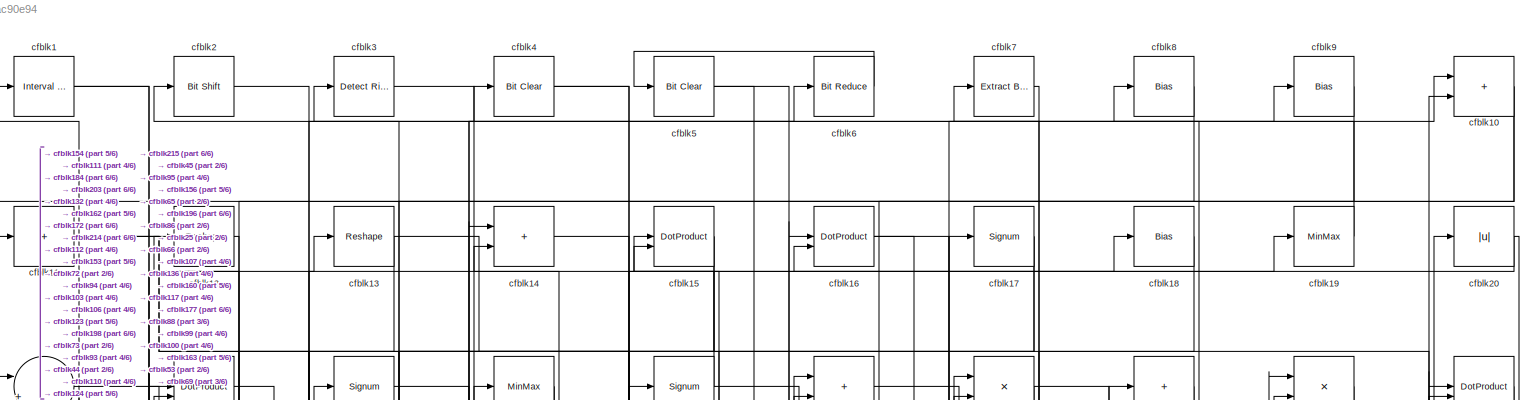
[diagram: root canvas - part 1/6, full width, top band]
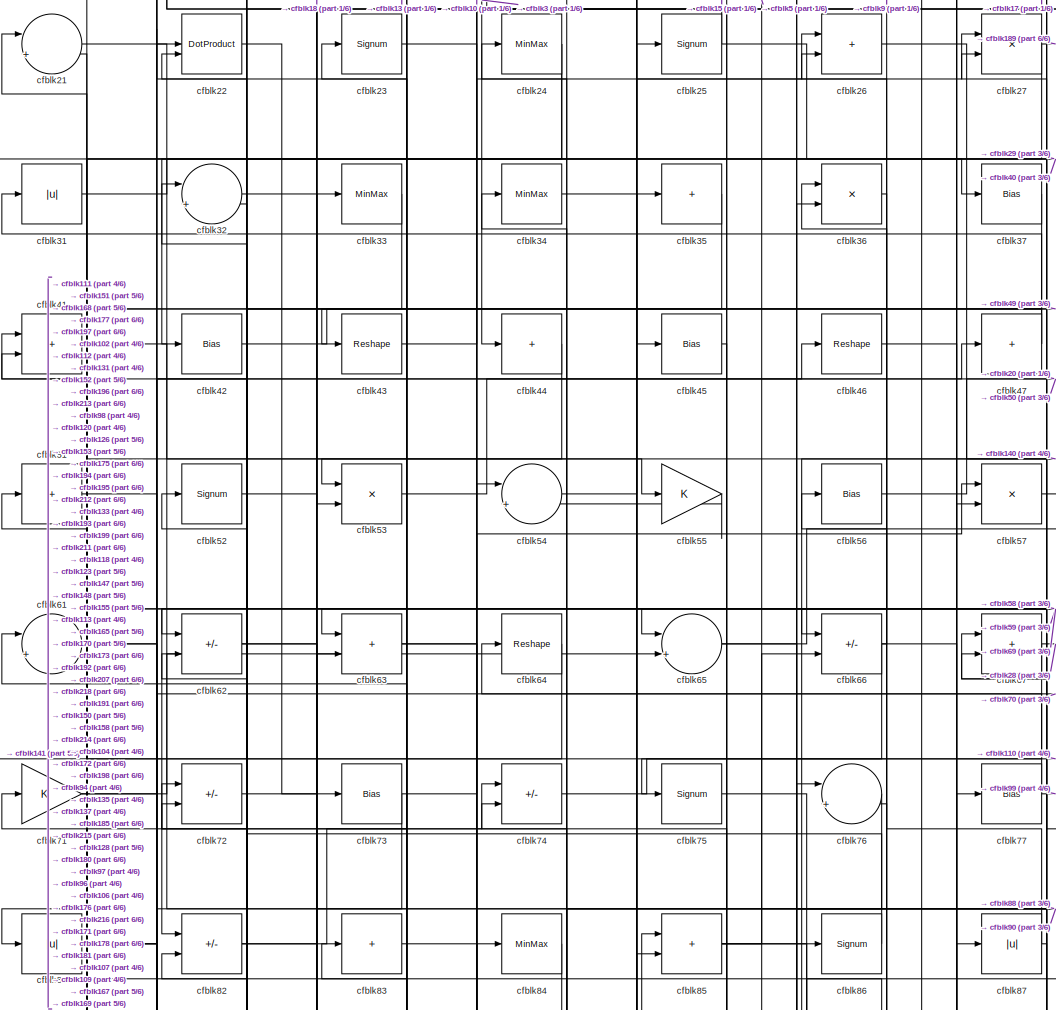
[diagram: root canvas - part 2/6, top center region]
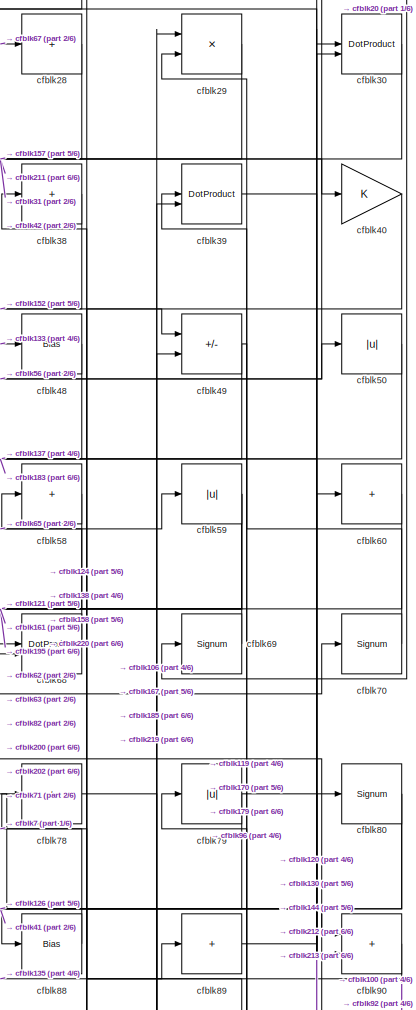
[diagram: root canvas - part 3/6, top right region]
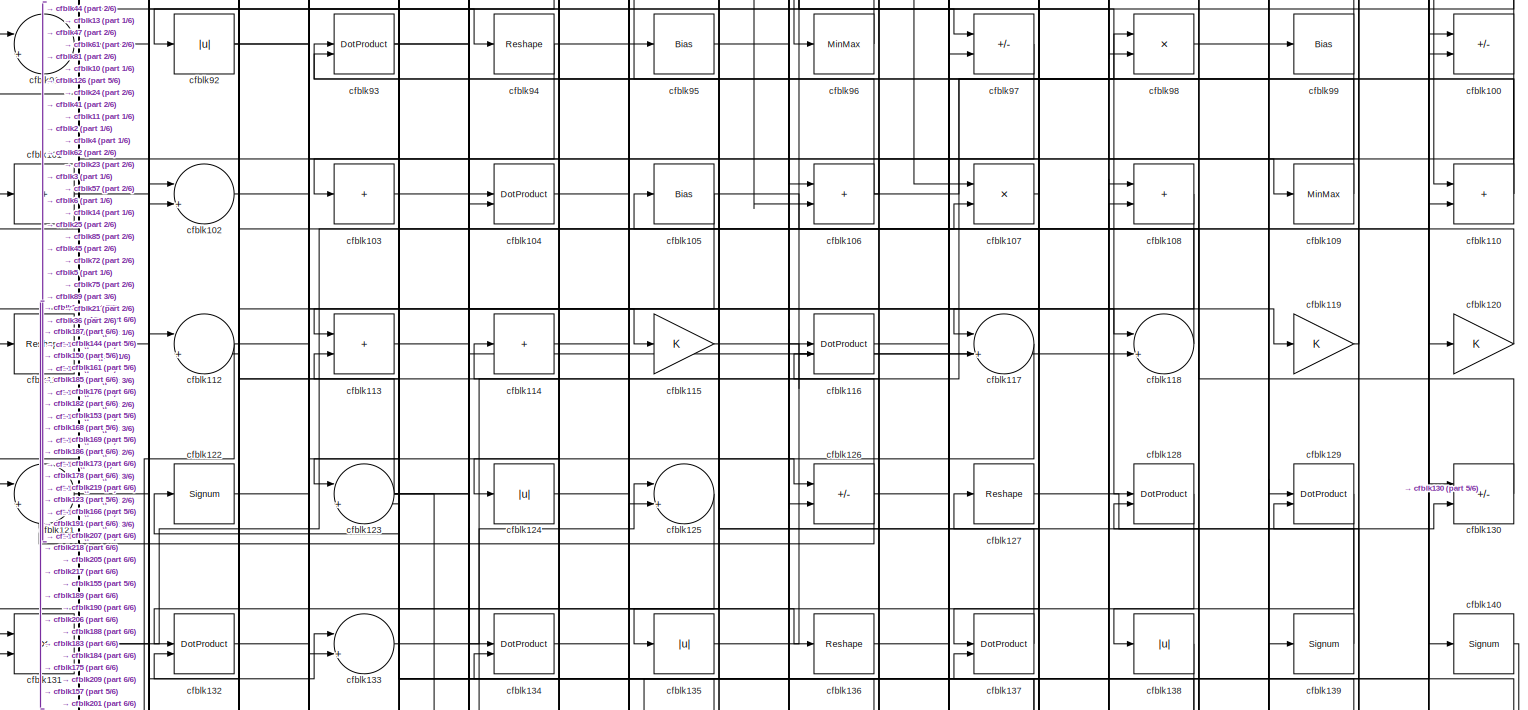
[diagram: root canvas - part 4/6, full width, middle band]
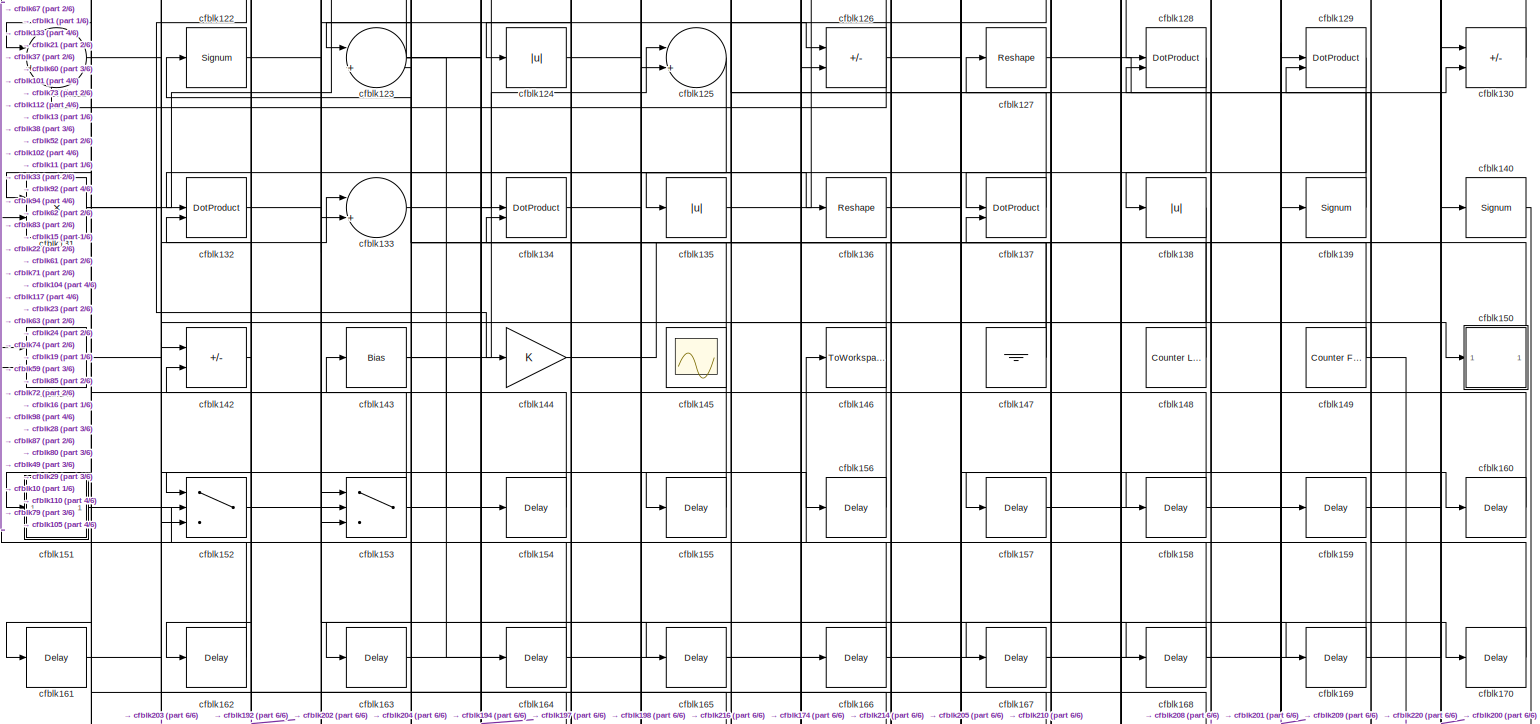
[diagram: root canvas - part 5/6, full width, middle band]
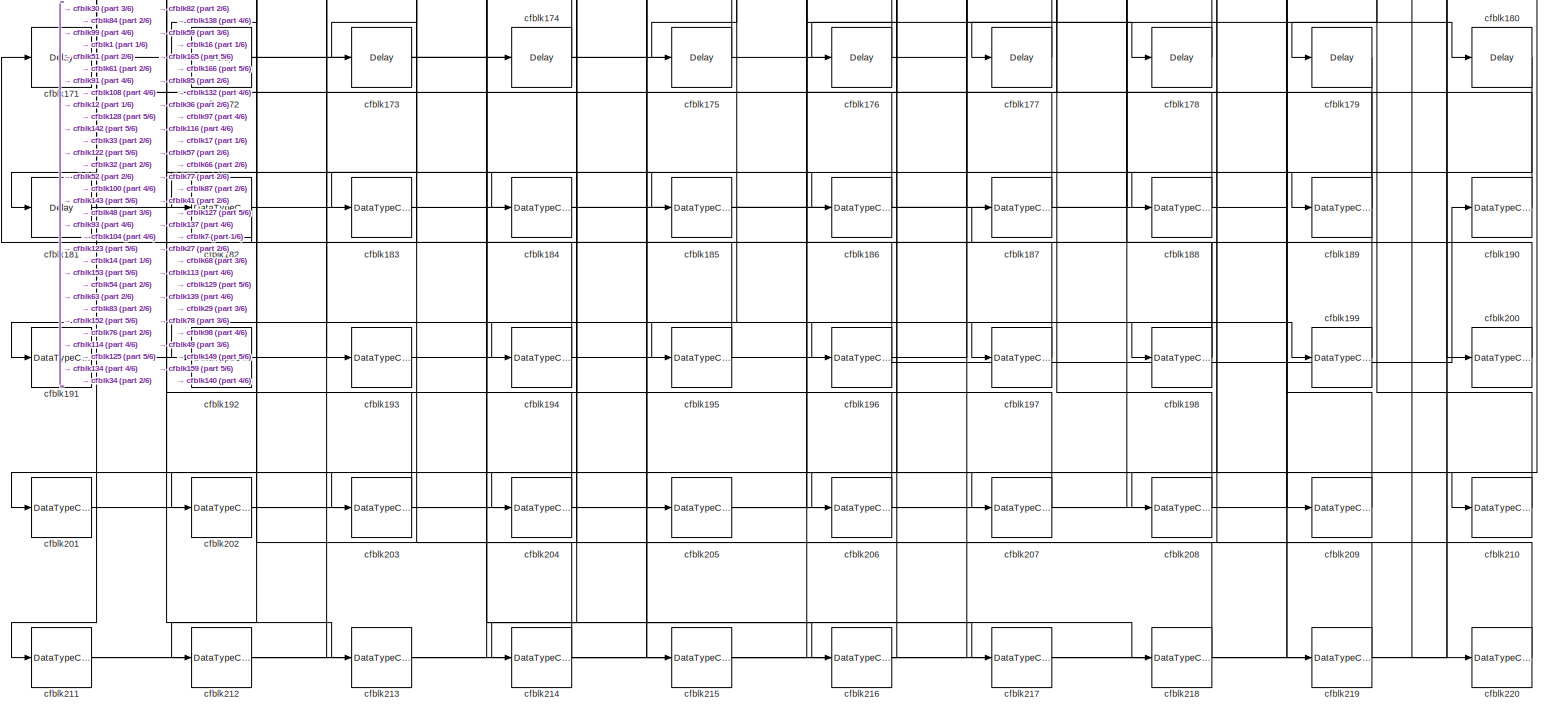
[diagram: root canvas - part 6/6, full width, bottom band]
MODEL slx_59b73ac90e94
KIND model
CONFIG AbsTol = auto
CONFIG EnableMultiTasking = off
CONFIG FixedStep = auto
CONFIG MaxStep = auto
CONFIG MinStep = auto
CONFIG RelTol = 1e-3
CONFIG SampleTimeConstraint = Unconstrained
CONFIG SolverName = VariableStepAuto
CONFIG StartTime = 0.0
CONFIG StopTime = 10.0
BLOCK [Reference] cfblk1  REF=hdlsllib/Logic and Bit
Operations/Interval Test
  SourceBlock = hdlsllib/Logic and Bit\nOperations/Interval Test
  SourceType = Interval Test
BLOCK [Sum] cfblk10
  IconShape = rectangular
BLOCK [Sum] cfblk100
  IconShape = rectangular
  Inputs = +-
BLOCK [Sum] cfblk101
  IconShape = rectangular
  Inputs = +
BLOCK [Sum] cfblk102
  Inputs = |++
BLOCK [Sum] cfblk103
  IconShape = rectangular
  Inputs = +
BLOCK [DotProduct] cfblk104
  OutDataTypeStr = Inherit: Inherit via internal rule
BLOCK [Bias] cfblk105
  Bias = 0.0
  SaturateOnIntegerOverflow = off
BLOCK [Sum] cfblk106
  IconShape = rectangular
BLOCK [Product] cfblk107
  Inputs = */
  RndMeth = Zero
  SaturateOnIntegerOverflow = on
BLOCK [Sum] cfblk108
  IconShape = rectangular
BLOCK [MinMax] cfblk109
BLOCK [Sum] cfblk11
  IconShape = rectangular
  Inputs = +
BLOCK [Sum] cfblk110
  IconShape = rectangular
BLOCK [Reshape] cfblk111
BLOCK [Sum] cfblk112
  Inputs = |++
BLOCK [Sum] cfblk113
  IconShape = rectangular
BLOCK [Sum] cfblk114
  IconShape = rectangular
  Inputs = +
BLOCK [Gain] cfblk115
BLOCK [DotProduct] cfblk116
  OutDataTypeStr = Inherit: Inherit via internal rule
BLOCK [Sum] cfblk117
  Inputs = |++
BLOCK [Sum] cfblk118
  Inputs = |++
BLOCK [Gain] cfblk119
BLOCK [Reshape] cfblk12
BLOCK [Gain] cfblk120
BLOCK [Sum] cfblk121
  Inputs = |++
BLOCK [Signum] cfblk122
BLOCK [Sum] cfblk123
  Inputs = |++
BLOCK [Abs] cfblk124
  SaturateOnIntegerOverflow = off
BLOCK [Sum] cfblk125
  Inputs = |++
BLOCK [Sum] cfblk126
  IconShape = rectangular
  Inputs = +-
BLOCK [Reshape] cfblk127
BLOCK [DotProduct] cfblk128
  OutDataTypeStr = Inherit: Inherit via internal rule
BLOCK [DotProduct] cfblk129
  OutDataTypeStr = Inherit: Inherit via internal rule
BLOCK [Reshape] cfblk13
BLOCK [Sum] cfblk130
  IconShape = rectangular
  Inputs = +-
BLOCK [Product] cfblk131
  Inputs = */
  RndMeth = Zero
  SaturateOnIntegerOverflow = on
BLOCK [DotProduct] cfblk132
  OutDataTypeStr = Inherit: Inherit via internal rule
BLOCK [Sum] cfblk133
  Inputs = |++
BLOCK [DotProduct] cfblk134
  OutDataTypeStr = Inherit: Inherit via internal rule
BLOCK [Abs] cfblk135
  SaturateOnIntegerOverflow = off
BLOCK [Reshape] cfblk136
BLOCK [DotProduct] cfblk137
  OutDataTypeStr = Inherit: Inherit via internal rule
BLOCK [Abs] cfblk138
  SaturateOnIntegerOverflow = off
BLOCK [Signum] cfblk139
BLOCK [Sum] cfblk14
  IconShape = rectangular
BLOCK [Signum] cfblk140
BLOCK [Sum] cfblk141
  IconShape = rectangular
BLOCK [Sum] cfblk142
  IconShape = rectangular
  Inputs = +-
BLOCK [Bias] cfblk143
  Bias = 0.0
  SaturateOnIntegerOverflow = off
BLOCK [Gain] cfblk144
BLOCK [Scope] cfblk145
  Floating = on
  NumInputPorts = 1
  ScopeSpecificationString = Simulink.scopes.TimeScopeBlockCfg('CurrentConfiguration', extmgr.ConfigurationSet(extmgr.Configuration('Core','General UI',true,'FigureColor',[0.156862745098039 0.156862745098039 0.156862745098039]),extmgr.Configuration('Core','Source UI',true),extmgr.Configuration('Sources','WiredSimulink',true,'DataLoggingVariableName','ScopeData1','DataLoggingSaveFormat','StructureWithTime','DataLoggingLimitDat...<+2713ch>
BLOCK [ToWorkspace] cfblk146
  MaxDataPoints = inf
  SampleTime = -1
  SaveFormat = Timeseries
  VariableName = simout
BLOCK [Ground] cfblk147
BLOCK [Reference] cfblk148  REF=hdlsllib/Sources/Counter
Limited
  SourceBlock = hdlsllib/Sources/Counter\nLimited
  SourceType = Counter Limited
BLOCK [Reference] cfblk149  REF=hdlsllib/Sources/Counter
Free-Running
  SourceBlock = hdlsllib/Sources/Counter\nFree-Running
  SourceType = Counter Free-Running
BLOCK [DotProduct] cfblk15
  OutDataTypeStr = Inherit: Inherit via internal rule
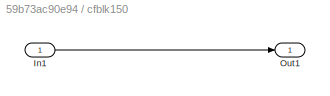
BLOCK [SubSystem] cfblk150
  LibrarySourceBlock = hdlsllib/Ports &\nSubsystems/Subsystem
BLOCK [Inport] cfblk150/In1
BLOCK [Outport] cfblk150/Out1
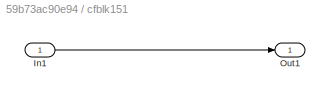
BLOCK [SubSystem] cfblk151
  LibrarySourceBlock = hdlsllib/Ports &\nSubsystems/Subsystem
BLOCK [Inport] cfblk151/In1
BLOCK [Outport] cfblk151/Out1
BLOCK [Switch] cfblk152
  InputSameDT = off
  SaturateOnIntegerOverflow = off
BLOCK [Switch] cfblk153
  InputSameDT = off
  SaturateOnIntegerOverflow = off
BLOCK [Delay] cfblk154
  InputPortMap = u0
  SampleTime = 1
BLOCK [Delay] cfblk155
  InputPortMap = u0
  SampleTime = 1
BLOCK [Delay] cfblk156
  InputPortMap = u0
  SampleTime = 1
BLOCK [Delay] cfblk157
  InputPortMap = u0
  SampleTime = 1
BLOCK [Delay] cfblk158
  InputPortMap = u0
  SampleTime = 1
BLOCK [Delay] cfblk159
  InputPortMap = u0
  SampleTime = 1
BLOCK [DotProduct] cfblk16
  OutDataTypeStr = Inherit: Inherit via internal rule
BLOCK [Delay] cfblk160
  InputPortMap = u0
  SampleTime = 1
BLOCK [Delay] cfblk161
  InputPortMap = u0
  SampleTime = 1
BLOCK [Delay] cfblk162
  InputPortMap = u0
  SampleTime = 1
BLOCK [Delay] cfblk163
  InputPortMap = u0
  SampleTime = 1
BLOCK [Delay] cfblk164
  InputPortMap = u0
  SampleTime = 1
BLOCK [Delay] cfblk165
  InputPortMap = u0
  SampleTime = 1
BLOCK [Delay] cfblk166
  InputPortMap = u0
  SampleTime = 1
BLOCK [Delay] cfblk167
  InputPortMap = u0
  SampleTime = 1
BLOCK [Delay] cfblk168
  InputPortMap = u0
  SampleTime = 1
BLOCK [Delay] cfblk169
  InputPortMap = u0
  SampleTime = 1
BLOCK [Signum] cfblk17
BLOCK [Delay] cfblk170
  InputPortMap = u0
  SampleTime = 1
BLOCK [Delay] cfblk171
  InputPortMap = u0
  SampleTime = 1
BLOCK [Delay] cfblk172
  InputPortMap = u0
  SampleTime = 1
BLOCK [Delay] cfblk173
  InputPortMap = u0
  SampleTime = 1
BLOCK [Delay] cfblk174
  InputPortMap = u0
  SampleTime = 1
BLOCK [Delay] cfblk175
  InputPortMap = u0
  SampleTime = 1
BLOCK [Delay] cfblk176
  InputPortMap = u0
  SampleTime = 1
BLOCK [Delay] cfblk177
  InputPortMap = u0
  SampleTime = 1
BLOCK [Delay] cfblk178
  InputPortMap = u0
  SampleTime = 1
BLOCK [Delay] cfblk179
  InputPortMap = u0
  SampleTime = 1
BLOCK [Bias] cfblk18
  Bias = 0.0
  SaturateOnIntegerOverflow = off
BLOCK [Delay] cfblk180
  InputPortMap = u0
  SampleTime = 1
BLOCK [Delay] cfblk181
  InputPortMap = u0
  SampleTime = 1
BLOCK [DataTypeConversion] cfblk182
  OutDataTypeStr = uint8
  RndMeth = Floor
  SaturateOnIntegerOverflow = off
BLOCK [DataTypeConversion] cfblk183
  OutDataTypeStr = uint8
  RndMeth = Floor
  SaturateOnIntegerOverflow = off
BLOCK [DataTypeConversion] cfblk184
  OutDataTypeStr = uint8
  RndMeth = Floor
  SaturateOnIntegerOverflow = off
BLOCK [DataTypeConversion] cfblk185
  RndMeth = Floor
  SaturateOnIntegerOverflow = off
BLOCK [DataTypeConversion] cfblk186
  OutDataTypeStr = uint8
  RndMeth = Floor
  SaturateOnIntegerOverflow = off
BLOCK [DataTypeConversion] cfblk187
  OutDataTypeStr = uint8
  RndMeth = Floor
  SaturateOnIntegerOverflow = off
BLOCK [DataTypeConversion] cfblk188
  OutDataTypeStr = uint8
  RndMeth = Floor
  SaturateOnIntegerOverflow = off
BLOCK [DataTypeConversion] cfblk189
  OutDataTypeStr = uint8
  RndMeth = Floor
  SaturateOnIntegerOverflow = off
BLOCK [MinMax] cfblk19
BLOCK [DataTypeConversion] cfblk190
  OutDataTypeStr = uint8
  RndMeth = Floor
  SaturateOnIntegerOverflow = off
BLOCK [DataTypeConversion] cfblk191
  OutDataTypeStr = uint8
  RndMeth = Floor
  SaturateOnIntegerOverflow = off
BLOCK [DataTypeConversion] cfblk192
  OutDataTypeStr = uint8
  RndMeth = Floor
  SaturateOnIntegerOverflow = off
BLOCK [DataTypeConversion] cfblk193
  OutDataTypeStr = uint8
  RndMeth = Floor
  SaturateOnIntegerOverflow = off
BLOCK [DataTypeConversion] cfblk194
  OutDataTypeStr = uint8
  RndMeth = Floor
  SaturateOnIntegerOverflow = off
BLOCK [DataTypeConversion] cfblk195
  OutDataTypeStr = uint8
  RndMeth = Floor
  SaturateOnIntegerOverflow = off
BLOCK [DataTypeConversion] cfblk196
  RndMeth = Floor
  SaturateOnIntegerOverflow = off
BLOCK [DataTypeConversion] cfblk197
  OutDataTypeStr = uint8
  RndMeth = Floor
  SaturateOnIntegerOverflow = off
BLOCK [DataTypeConversion] cfblk198
  RndMeth = Floor
  SaturateOnIntegerOverflow = off
BLOCK [DataTypeConversion] cfblk199
  OutDataTypeStr = uint8
  RndMeth = Floor
  SaturateOnIntegerOverflow = off
BLOCK [Reference] cfblk2  REF=hdlsllib/Logic and Bit
Operations/Bit Shift
  SourceBlock = hdlsllib/Logic and Bit\nOperations/Bit Shift
  SourceType = Bit Shift
BLOCK [Abs] cfblk20
  SaturateOnIntegerOverflow = off
BLOCK [DataTypeConversion] cfblk200
  OutDataTypeStr = uint8
  RndMeth = Floor
  SaturateOnIntegerOverflow = off
BLOCK [DataTypeConversion] cfblk201
  OutDataTypeStr = uint8
  RndMeth = Floor
  SaturateOnIntegerOverflow = off
BLOCK [DataTypeConversion] cfblk202
  OutDataTypeStr = uint8
  RndMeth = Floor
  SaturateOnIntegerOverflow = off
BLOCK [DataTypeConversion] cfblk203
  OutDataTypeStr = uint8
  RndMeth = Floor
  SaturateOnIntegerOverflow = off
BLOCK [DataTypeConversion] cfblk204
  OutDataTypeStr = uint8
  RndMeth = Floor
  SaturateOnIntegerOverflow = off
BLOCK [DataTypeConversion] cfblk205
  OutDataTypeStr = uint8
  RndMeth = Floor
  SaturateOnIntegerOverflow = off
BLOCK [DataTypeConversion] cfblk206
  OutDataTypeStr = uint8
  RndMeth = Floor
  SaturateOnIntegerOverflow = off
BLOCK [DataTypeConversion] cfblk207
  OutDataTypeStr = uint8
  RndMeth = Floor
  SaturateOnIntegerOverflow = off
BLOCK [DataTypeConversion] cfblk208
  OutDataTypeStr = uint8
  RndMeth = Floor
  SaturateOnIntegerOverflow = off
BLOCK [DataTypeConversion] cfblk209
  OutDataTypeStr = uint8
  RndMeth = Floor
  SaturateOnIntegerOverflow = off
BLOCK [Sum] cfblk21
  Inputs = |++
BLOCK [DataTypeConversion] cfblk210
  OutDataTypeStr = uint8
  RndMeth = Floor
  SaturateOnIntegerOverflow = off
BLOCK [DataTypeConversion] cfblk211
  RndMeth = Floor
  SaturateOnIntegerOverflow = off
BLOCK [DataTypeConversion] cfblk212
  OutDataTypeStr = uint8
  RndMeth = Floor
  SaturateOnIntegerOverflow = off
BLOCK [DataTypeConversion] cfblk213
  OutDataTypeStr = uint8
  RndMeth = Floor
  SaturateOnIntegerOverflow = off
BLOCK [DataTypeConversion] cfblk214
  RndMeth = Floor
  SaturateOnIntegerOverflow = off
BLOCK [DataTypeConversion] cfblk215
  OutDataTypeStr = uint8
  RndMeth = Floor
  SaturateOnIntegerOverflow = off
BLOCK [DataTypeConversion] cfblk216
  OutDataTypeStr = uint8
  RndMeth = Floor
  SaturateOnIntegerOverflow = off
BLOCK [DataTypeConversion] cfblk217
  OutDataTypeStr = uint8
  RndMeth = Floor
  SaturateOnIntegerOverflow = off
BLOCK [DataTypeConversion] cfblk218
  OutDataTypeStr = uint8
  RndMeth = Floor
  SaturateOnIntegerOverflow = off
BLOCK [DataTypeConversion] cfblk219
  OutDataTypeStr = uint8
  RndMeth = Floor
  SaturateOnIntegerOverflow = off
BLOCK [DotProduct] cfblk22
  OutDataTypeStr = Inherit: Inherit via internal rule
BLOCK [DataTypeConversion] cfblk220
  OutDataTypeStr = uint8
  RndMeth = Floor
  SaturateOnIntegerOverflow = off
BLOCK [Signum] cfblk23
BLOCK [MinMax] cfblk24
BLOCK [Signum] cfblk25
BLOCK [Sum] cfblk26
  IconShape = rectangular
BLOCK [Product] cfblk27
  Inputs = */
  RndMeth = Zero
  SaturateOnIntegerOverflow = on
BLOCK [Sum] cfblk28
  IconShape = rectangular
  Inputs = +
BLOCK [Product] cfblk29
  Inputs = */
  RndMeth = Zero
  SaturateOnIntegerOverflow = on
BLOCK [Reference] cfblk3  REF=hdlsllib/Logic and Bit
Operations/Detect Rise
Positive
  SourceBlock = hdlsllib/Logic and Bit\nOperations/Detect Rise\nPositive
  SourceType = Detect Rise Positive
BLOCK [DotProduct] cfblk30
  OutDataTypeStr = Inherit: Inherit via internal rule
BLOCK [Abs] cfblk31
  SaturateOnIntegerOverflow = off
BLOCK [Sum] cfblk32
  Inputs = |++
BLOCK [MinMax] cfblk33
BLOCK [MinMax] cfblk34
BLOCK [Sum] cfblk35
  IconShape = rectangular
  Inputs = +
BLOCK [Product] cfblk36
  Inputs = */
  RndMeth = Zero
  SaturateOnIntegerOverflow = on
BLOCK [Bias] cfblk37
  Bias = 0.0
  SaturateOnIntegerOverflow = off
BLOCK [Sum] cfblk38
  IconShape = rectangular
  Inputs = +
BLOCK [DotProduct] cfblk39
  OutDataTypeStr = Inherit: Inherit via internal rule
BLOCK [Reference] cfblk4  REF=simulink/Logic and Bit
Operations/Bit Clear
  LibrarySourceBlock = hdlsllib/Logic and Bit\nOperations/Bit Clear
  SourceBlock = simulink/Logic and Bit\nOperations/Bit Clear
  SourceType = Bit Clear
BLOCK [Gain] cfblk40
BLOCK [Sum] cfblk41
  IconShape = rectangular
BLOCK [Bias] cfblk42
  Bias = 0.0
  SaturateOnIntegerOverflow = off
BLOCK [Reshape] cfblk43
BLOCK [Sum] cfblk44
  IconShape = rectangular
  Inputs = +
BLOCK [Bias] cfblk45
  Bias = 0.0
  SaturateOnIntegerOverflow = off
BLOCK [Reshape] cfblk46
BLOCK [Sum] cfblk47
  IconShape = rectangular
  Inputs = +
BLOCK [Bias] cfblk48
  Bias = 0.0
  SaturateOnIntegerOverflow = off
BLOCK [Sum] cfblk49
  IconShape = rectangular
  Inputs = +-
BLOCK [Reference] cfblk5  REF=simulink/Logic and Bit
Operations/Bit Clear
  LibrarySourceBlock = hdlsllib/Logic and Bit\nOperations/Bit Clear
  SourceBlock = simulink/Logic and Bit\nOperations/Bit Clear
  SourceType = Bit Clear
BLOCK [Abs] cfblk50
  SaturateOnIntegerOverflow = off
BLOCK [Sum] cfblk51
  IconShape = rectangular
  Inputs = +
BLOCK [Signum] cfblk52
BLOCK [Product] cfblk53
  Inputs = */
  RndMeth = Zero
  SaturateOnIntegerOverflow = on
BLOCK [Sum] cfblk54
  Inputs = |++
BLOCK [Gain] cfblk55
BLOCK [Bias] cfblk56
  Bias = 0.0
  SaturateOnIntegerOverflow = off
BLOCK [Product] cfblk57
  Inputs = */
  RndMeth = Zero
  SaturateOnIntegerOverflow = on
BLOCK [Sum] cfblk58
  IconShape = rectangular
  Inputs = +
BLOCK [Abs] cfblk59
  SaturateOnIntegerOverflow = off
BLOCK [Reference] cfblk6  REF=hdlsllib/Logic and Bit
Operations/Bit Reduce
  SourceBlock = hdlsllib/Logic and Bit\nOperations/Bit Reduce
  SourceType = Bit Reduce
BLOCK [Sum] cfblk60
  IconShape = rectangular
  Inputs = +
BLOCK [Sum] cfblk61
  Inputs = |++
BLOCK [Sum] cfblk62
  IconShape = rectangular
  Inputs = +-
BLOCK [Sum] cfblk63
  IconShape = rectangular
BLOCK [Reshape] cfblk64
BLOCK [Sum] cfblk65
  Inputs = |++
BLOCK [Sum] cfblk66
  IconShape = rectangular
  Inputs = +-
BLOCK [Sum] cfblk67
  IconShape = rectangular
BLOCK [DotProduct] cfblk68
  OutDataTypeStr = Inherit: Inherit via internal rule
BLOCK [Signum] cfblk69
BLOCK [Reference] cfblk7  REF=simulink/Logic and Bit
Operations/Extract Bits
  LibrarySourceBlock = hdlsllib/Logic and Bit\nOperations/Extract Bits
  SourceBlock = simulink/Logic and Bit\nOperations/Extract Bits
  SourceType = Extract Bits
BLOCK [Signum] cfblk70
BLOCK [Gain] cfblk71
BLOCK [Sum] cfblk72
  IconShape = rectangular
  Inputs = +-
BLOCK [Bias] cfblk73
  Bias = 0.0
  SaturateOnIntegerOverflow = off
BLOCK [Sum] cfblk74
  IconShape = rectangular
  Inputs = +-
BLOCK [Signum] cfblk75
BLOCK [Sum] cfblk76
  Inputs = |++
BLOCK [Bias] cfblk77
  Bias = 0.0
  SaturateOnIntegerOverflow = off
BLOCK [Sum] cfblk78
  IconShape = rectangular
  Inputs = +
BLOCK [Abs] cfblk79
  SaturateOnIntegerOverflow = off
BLOCK [Bias] cfblk8
  Bias = 0.0
  SaturateOnIntegerOverflow = off
BLOCK [Signum] cfblk80
BLOCK [Abs] cfblk81
  SaturateOnIntegerOverflow = off
BLOCK [Sum] cfblk82
  IconShape = rectangular
  Inputs = +-
BLOCK [Sum] cfblk83
  IconShape = rectangular
  Inputs = +
BLOCK [MinMax] cfblk84
BLOCK [Sum] cfblk85
  IconShape = rectangular
BLOCK [Signum] cfblk86
BLOCK [Abs] cfblk87
  SaturateOnIntegerOverflow = off
BLOCK [Bias] cfblk88
  Bias = 0.0
  SaturateOnIntegerOverflow = off
BLOCK [Sum] cfblk89
  IconShape = rectangular
  Inputs = +
BLOCK [Bias] cfblk9
  Bias = 0.0
  SaturateOnIntegerOverflow = off
BLOCK [Sum] cfblk90
  IconShape = rectangular
BLOCK [Sum] cfblk91
  Inputs = |++
BLOCK [Abs] cfblk92
  SaturateOnIntegerOverflow = off
BLOCK [DotProduct] cfblk93
  OutDataTypeStr = Inherit: Inherit via internal rule
BLOCK [Reshape] cfblk94
BLOCK [Bias] cfblk95
  Bias = 0.0
  SaturateOnIntegerOverflow = off
BLOCK [MinMax] cfblk96
BLOCK [Sum] cfblk97
  IconShape = rectangular
  Inputs = +-
BLOCK [Product] cfblk98
  Inputs = */
  RndMeth = Zero
  SaturateOnIntegerOverflow = on
BLOCK [Bias] cfblk99
  Bias = 0.0
  SaturateOnIntegerOverflow = off
NET cfblk100:1 -> cfblk173:1, cfblk38:1
LINE cfblk101:1 -> cfblk150:1
LINE cfblk102:1 -> cfblk126:1
LINE cfblk103:1 -> cfblk115:1
LINE cfblk104:1 -> cfblk25:1
NET cfblk105:1 -> cfblk107:2, cfblk113:1
NET cfblk106:1 -> cfblk36:1, cfblk39:2, cfblk3:1
LINE cfblk107:1 -> cfblk27:1
LINE cfblk108:1 -> cfblk182:1
LINE cfblk109:1 -> cfblk67:1
NET cfblk10:1 -> cfblk11:1, cfblk132:1
NET cfblk110:1 -> cfblk14:2, cfblk85:1
LINE cfblk111:1 -> cfblk13:1
NET cfblk112:1 -> cfblk144:1, cfblk4:1
LINE cfblk113:1 -> cfblk57:1
LINE cfblk114:1 -> cfblk217:1
LINE cfblk115:1 -> cfblk118:2
LINE cfblk116:1 -> cfblk188:1
LINE cfblk117:1 -> cfblk155:1
LINE cfblk118:1 -> cfblk23:1
LINE cfblk119:1 -> cfblk79:1
NET cfblk11:1 -> cfblk100:2, cfblk153:1
LINE cfblk120:1 -> cfblk41:1
LINE cfblk121:1 -> cfblk156:1
LINE cfblk122:1 -> cfblk194:1
NET cfblk123:1 -> cfblk117:2, cfblk154:1, cfblk216:1, cfblk62:2, cfblk83:1
LINE cfblk124:1 -> cfblk19:1
LINE cfblk125:1 -> cfblk163:1
NET cfblk126:1 -> cfblk121:2, cfblk72:2, cfblk98:1
LINE cfblk127:1 -> cfblk130:2
LINE cfblk128:1 -> cfblk192:1
LINE cfblk129:1 -> cfblk208:1
LINE cfblk12:1 -> cfblk172:1
LINE cfblk130:1 -> cfblk105:1
NET cfblk131:1 -> cfblk100:1, cfblk47:1
LINE cfblk132:1 -> cfblk186:1
LINE cfblk133:1 -> cfblk48:1
LINE cfblk134:1 -> cfblk205:1
LINE cfblk135:1 -> cfblk89:1
LINE cfblk136:1 -> cfblk9:1
LINE cfblk137:1 -> cfblk72:1
LINE cfblk138:1 -> cfblk175:1
LINE cfblk139:1 -> cfblk93:1
NET cfblk13:1 -> cfblk162:1, cfblk45:1
LINE cfblk140:1 -> cfblk201:1
NET cfblk141:1 -> cfblk101:1, cfblk133:1
LINE cfblk142:1 -> cfblk202:1
NET cfblk143:1 -> cfblk125:1, cfblk164:1
LINE cfblk144:1 -> cfblk80:1
NET cfblk147:1 -> cfblk123:2, cfblk61:1
LINE cfblk148:1 -> cfblk71:1
NET cfblk149:1 -> cfblk122:1, cfblk220:1
LINE cfblk14:1 -> cfblk215:1
LINE cfblk150/In1:1 -> cfblk150/Out1:1
LINE cfblk150:1 -> cfblk24:1
LINE cfblk151/In1:1 -> cfblk151/Out1:1
LINE cfblk151:1 -> cfblk146:1
LINE cfblk152:1 -> cfblk33:1
NET cfblk153:1 -> cfblk197:1, cfblk52:1
LINE cfblk154:1 -> cfblk1:1
LINE cfblk155:1 -> cfblk22:1
LINE cfblk156:1 -> cfblk15:2
LINE cfblk157:1 -> cfblk110:2
LINE cfblk158:1 -> cfblk74:2
LINE cfblk159:1 -> cfblk200:1
NET cfblk15:1 -> cfblk123:1, cfblk53:2
LINE cfblk160:1 -> cfblk128:2
LINE cfblk161:1 -> cfblk102:1
LINE cfblk162:1 -> cfblk141:1
LINE cfblk163:1 -> cfblk10:2
LINE cfblk164:1 -> cfblk153:2
LINE cfblk165:1 -> cfblk210:1
LINE cfblk166:1 -> cfblk104:1
LINE cfblk167:1 -> cfblk49:2
LINE cfblk168:1 -> cfblk21:1
LINE cfblk169:1 -> cfblk67:2
NET cfblk16:1 -> cfblk107:1, cfblk160:1
LINE cfblk170:1 -> cfblk29:2
LINE cfblk171:1 -> cfblk57:2
LINE cfblk172:1 -> cfblk85:2
LINE cfblk173:1 -> cfblk54:1
LINE cfblk174:1 -> cfblk152:2
LINE cfblk175:1 -> cfblk82:2
LINE cfblk176:1 -> cfblk132:2
LINE cfblk177:1 -> cfblk41:2
LINE cfblk178:1 -> cfblk113:2
LINE cfblk179:1 -> cfblk187:1
NET cfblk17:1 -> cfblk53:1, cfblk65:1
LINE cfblk180:1 -> cfblk204:1
LINE cfblk181:1 -> cfblk77:1
LINE cfblk182:1 -> cfblk171:1
LINE cfblk183:1 -> cfblk108:1
LINE cfblk184:1 -> cfblk108:2
NET cfblk185:1 -> cfblk29:1, cfblk36:2
LINE cfblk186:1 -> cfblk91:1
LINE cfblk187:1 -> cfblk91:2
LINE cfblk188:1 -> cfblk137:2
LINE cfblk189:1 -> cfblk116:1
LINE cfblk18:1 -> cfblk117:1
LINE cfblk190:1 -> cfblk116:2
LINE cfblk191:1 -> cfblk104:2
LINE cfblk192:1 -> cfblk84:1
LINE cfblk193:1 -> cfblk87:1
LINE cfblk194:1 -> cfblk32:1
LINE cfblk195:1 -> cfblk32:2
NET cfblk196:1 -> cfblk16:1, cfblk190:1
LINE cfblk197:1 -> cfblk51:1
NET cfblk198:1 -> cfblk143:1, cfblk14:1
LINE cfblk199:1 -> cfblk34:1
LINE cfblk19:1 -> cfblk2:1
NET cfblk1:1 -> cfblk184:1, cfblk203:1
LINE cfblk200:1 -> cfblk68:1
LINE cfblk201:1 -> cfblk159:1
LINE cfblk202:1 -> cfblk68:2
LINE cfblk203:1 -> cfblk142:1
LINE cfblk204:1 -> cfblk142:2
LINE cfblk205:1 -> cfblk166:1
LINE cfblk206:1 -> cfblk134:1
LINE cfblk207:1 -> cfblk134:2
LINE cfblk208:1 -> cfblk127:1
LINE cfblk209:1 -> cfblk129:1
NET cfblk20:1 -> cfblk16:2, cfblk69:1
LINE cfblk210:1 -> cfblk129:2
NET cfblk211:1 -> cfblk174:1, cfblk63:2
LINE cfblk212:1 -> cfblk30:1
LINE cfblk213:1 -> cfblk30:2
NET cfblk214:1 -> cfblk125:2, cfblk12:1, cfblk17:1
LINE cfblk215:1 -> cfblk76:1
LINE cfblk216:1 -> cfblk76:2
LINE cfblk217:1 -> cfblk139:1
LINE cfblk218:1 -> cfblk114:1
LINE cfblk219:1 -> cfblk93:2
LINE cfblk21:1 -> cfblk55:1
LINE cfblk220:1 -> cfblk78:1
LINE cfblk22:1 -> cfblk73:1
LINE cfblk23:1 -> cfblk170:1
NET cfblk24:1 -> cfblk112:2, cfblk131:2
NET cfblk25:1 -> cfblk15:1, cfblk37:1
LINE cfblk26:1 -> cfblk140:1
NET cfblk27:1 -> cfblk111:1, cfblk189:1
LINE cfblk28:1 -> cfblk157:1
LINE cfblk29:1 -> cfblk42:1
LINE cfblk2:1 -> cfblk94:1
LINE cfblk30:1 -> cfblk211:1
LINE cfblk31:1 -> cfblk40:1
LINE cfblk32:1 -> cfblk193:1
LINE cfblk33:1 -> cfblk212:1
LINE cfblk34:1 -> cfblk198:1
LINE cfblk35:1 -> cfblk61:2
LINE cfblk36:1 -> cfblk176:1
LINE cfblk37:1 -> cfblk151:1
LINE cfblk38:1 -> cfblk152:1
LINE cfblk39:1 -> cfblk120:1
LINE cfblk3:1 -> cfblk44:1
LINE cfblk40:1 -> cfblk138:1
LINE cfblk41:1 -> cfblk88:1
LINE cfblk42:1 -> cfblk49:1
LINE cfblk43:1 -> cfblk27:2
LINE cfblk44:1 -> cfblk131:1
LINE cfblk45:1 -> cfblk135:1
LINE cfblk46:1 -> cfblk97:2
NET cfblk47:1 -> cfblk31:1, cfblk43:1
LINE cfblk48:1 -> cfblk183:1
NET cfblk49:1 -> cfblk179:1, cfblk96:1
NET cfblk4:1 -> cfblk136:1, cfblk95:1
LINE cfblk50:1 -> cfblk137:1
LINE cfblk51:1 -> cfblk196:1
LINE cfblk52:1 -> cfblk199:1
LINE cfblk53:1 -> cfblk20:1
LINE cfblk54:1 -> cfblk35:1
LINE cfblk55:1 -> cfblk54:2
LINE cfblk56:1 -> cfblk50:1
LINE cfblk57:1 -> cfblk109:1
LINE cfblk58:1 -> cfblk82:1
NET cfblk59:1 -> cfblk121:1, cfblk195:1, cfblk63:1
NET cfblk5:1 -> cfblk106:2, cfblk86:1
LINE cfblk60:1 -> cfblk161:1
NET cfblk61:1 -> cfblk102:2, cfblk213:1
NET cfblk62:1 -> cfblk118:1, cfblk133:2
NET cfblk63:1 -> cfblk165:1, cfblk207:1
LINE cfblk64:1 -> cfblk81:1
NET cfblk65:1 -> cfblk59:1, cfblk90:2
NET cfblk66:1 -> cfblk178:1, cfblk26:2, cfblk75:1
NET cfblk67:1 -> cfblk141:2, cfblk28:1
LINE cfblk68:1 -> cfblk58:1
LINE cfblk69:1 -> cfblk62:1
LINE cfblk6:1 -> cfblk5:1
LINE cfblk70:1 -> cfblk39:1
NET cfblk71:1 -> cfblk65:2, cfblk70:1
LINE cfblk72:1 -> cfblk18:1
NET cfblk73:1 -> cfblk10:1, cfblk152:3
LINE cfblk74:1 -> cfblk110:1
LINE cfblk75:1 -> cfblk97:1
LINE cfblk76:1 -> cfblk214:1
NET cfblk77:1 -> cfblk64:1, cfblk99:1
LINE cfblk78:1 -> cfblk219:1
NET cfblk79:1 -> cfblk126:2, cfblk130:1
LINE cfblk7:1 -> cfblk177:1
NET cfblk80:1 -> cfblk124:1, cfblk158:1
NET cfblk81:1 -> cfblk112:1, cfblk46:1, cfblk98:2
NET cfblk82:1 -> cfblk74:1, cfblk90:1
LINE cfblk83:1 -> cfblk218:1
LINE cfblk84:1 -> cfblk191:1
NET cfblk85:1 -> cfblk128:1, cfblk180:1, cfblk66:2
LINE cfblk86:1 -> cfblk22:2
NET cfblk87:1 -> cfblk167:1, cfblk56:1
LINE cfblk88:1 -> cfblk7:1
LINE cfblk89:1 -> cfblk60:1
LINE cfblk8:1 -> cfblk103:1
LINE cfblk90:1 -> cfblk92:1
LINE cfblk91:1 -> cfblk185:1
NET cfblk92:1 -> cfblk168:1, cfblk169:1
NET cfblk93:1 -> cfblk119:1, cfblk6:1
NET cfblk94:1 -> cfblk153:3, cfblk26:1
LINE cfblk95:1 -> cfblk106:1
LINE cfblk96:1 -> cfblk21:2
LINE cfblk97:1 -> cfblk206:1
LINE cfblk98:1 -> cfblk209:1
NET cfblk99:1 -> cfblk181:1, cfblk8:1
LINE cfblk9:1 -> cfblk66:1
note: NET lines group one-source signal fan-out (src -> all destinations, sorted); 1:1 wires keep LINE
